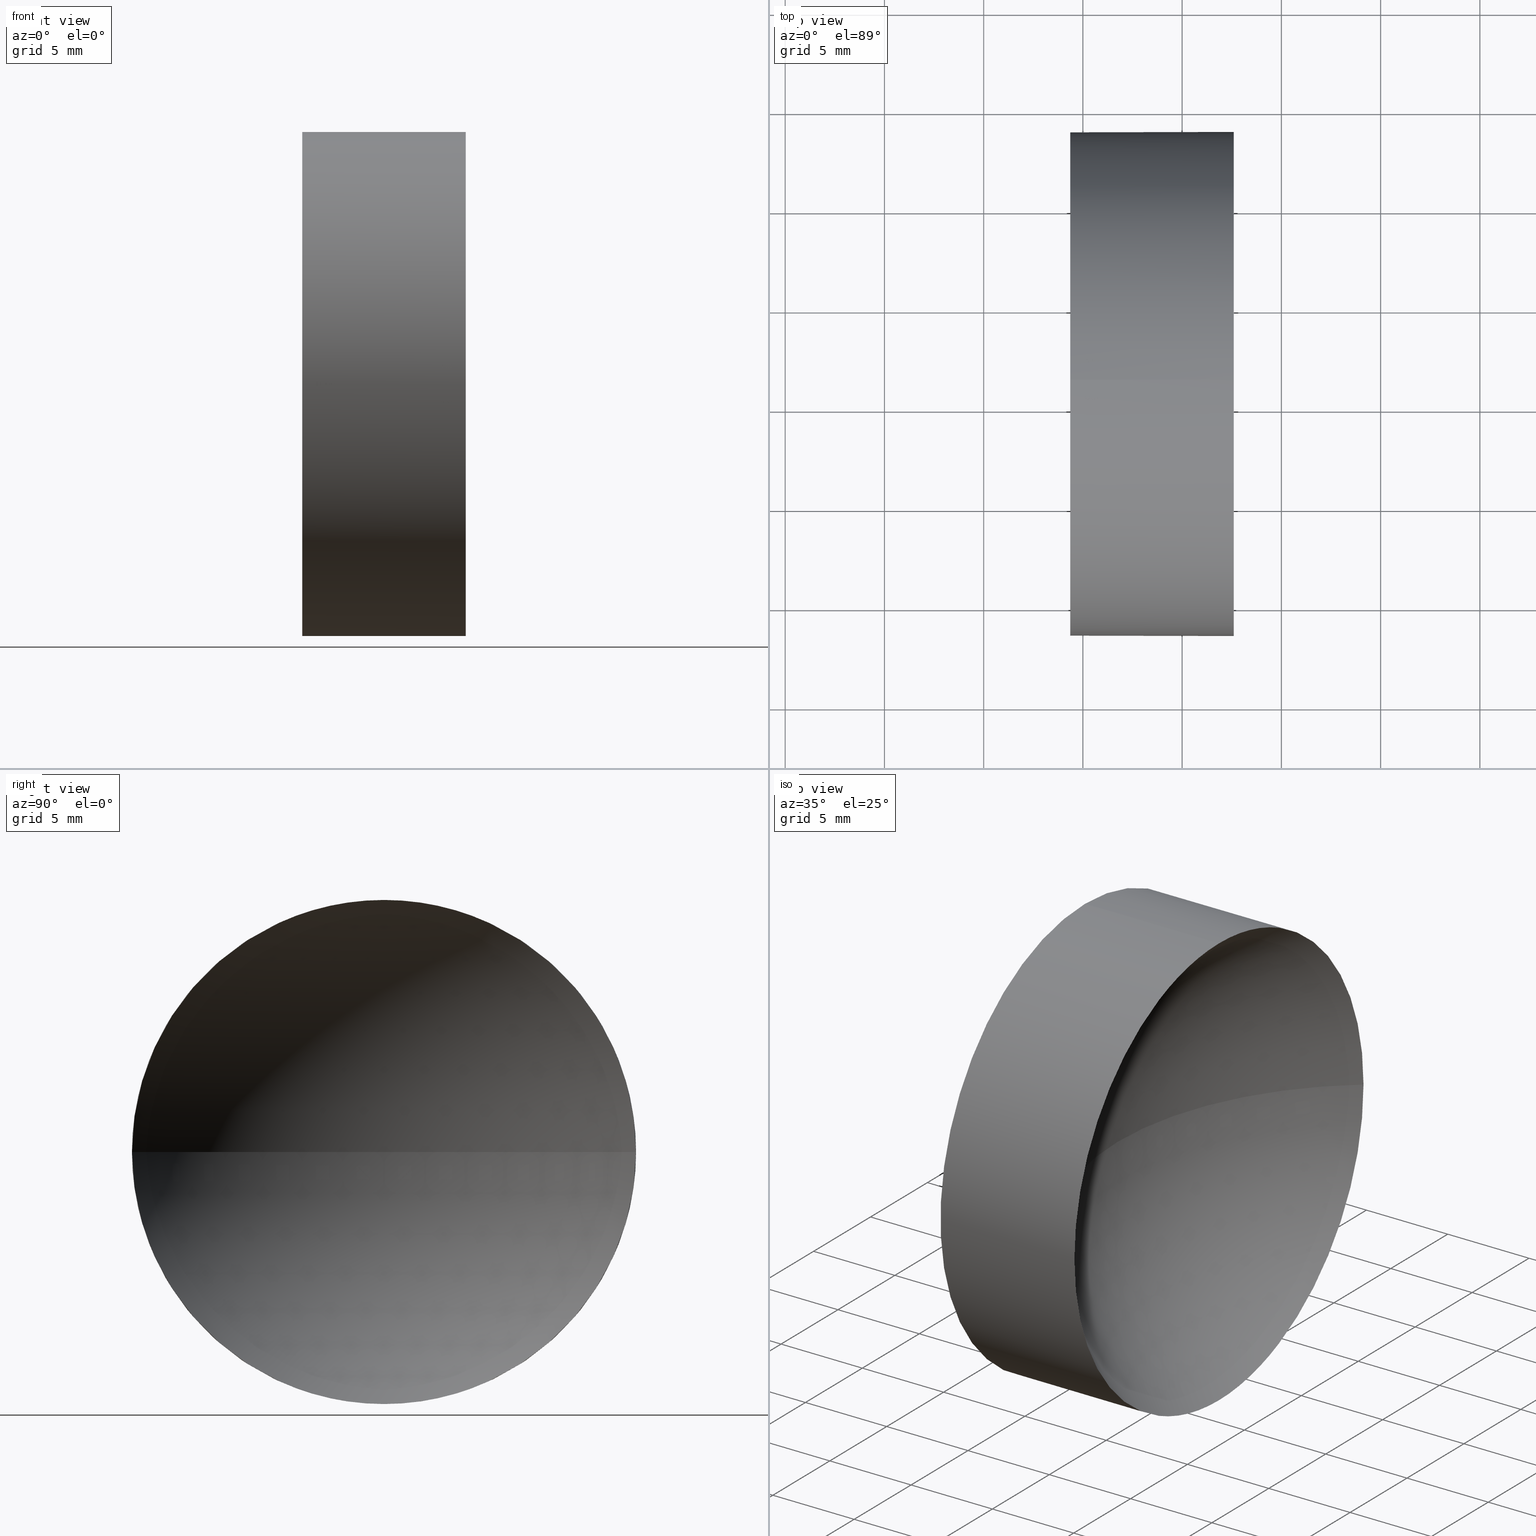
[diagram: canonical four-view strip — front | top / right | iso, engineering-drawing reading convention]
A machine part, canonical four-view strip (front | top / right | iso — engineering-drawing reading convention). The complete STEP part file that produces these views, byte-faithful:
ISO-10303-21;
HEADER;
FILE_DESCRIPTION (( 'STEP AP214' ),
    '1' );
FILE_NAME ('120263.STEP',
    '2019-06-25T03:00:01',
    ( '' ),
    ( '' ),
    'SwSTEP 2.0',
    'SolidWorks 2016',
    '' );
FILE_SCHEMA (( 'AUTOMOTIVE_DESIGN' ));
ENDSEC;

DATA;
#1 = PRODUCT_CONTEXT ( 'NONE', #57, 'mechanical' ) ;
#2 = ORIENTED_EDGE ( 'NONE', *, *, #133, .T. ) ;
#3 = EDGE_CURVE ( 'NONE', #100, #89, #6, .T. ) ;
#4 = EDGE_LOOP ( 'NONE', ( #185, #23, #33, #153 ) ) ;
#5 = FILL_AREA_STYLE_COLOUR ( '', #29 ) ;
#6 = CIRCLE ( 'NONE', #164, 12.70000000000001700 ) ;
#7 = AXIS2_PLACEMENT_3D ( 'NONE', #28, #147, #122 ) ;
#8 = ORIENTED_EDGE ( 'NONE', *, *, #120, .T. ) ;
#9 = CARTESIAN_POINT ( 'NONE',  ( 127.5990375788394700, 71.19398908659370300, -12.70000000000001500 ) ) ;
#10 = AXIS2_PLACEMENT_3D ( 'NONE', #97, #11, #109 ) ;
#11 = DIRECTION ( 'NONE',  ( -1.000000000000000000, -0.0000000000000000000, -0.0000000000000000000 ) ) ;
#12 = DIRECTION ( 'NONE',  ( 0.0000000000000000000, -1.000000000000000000, 0.0000000000000000000 ) ) ;
#13 = PLANE ( 'NONE',  #118 ) ;
#14 = PRESENTATION_STYLE_ASSIGNMENT (( #177 ) ) ;
#15 = ORIENTED_EDGE ( 'NONE', *, *, #133, .F. ) ;
#16 = CARTESIAN_POINT ( 'NONE',  ( 127.5990375788394700, 71.19398908659370300, 0.0000000000000000000 ) ) ;
#17 = AXIS2_PLACEMENT_3D ( 'NONE', #138, #186, #19 ) ;
#18 = CARTESIAN_POINT ( 'NONE',  ( 119.3629307920347200, 71.19398908659370300, 0.0000000000000000000 ) ) ;
#19 = DIRECTION ( 'NONE',  ( 0.0000000000000000000, -1.000000000000000000, -1.224646799147353000E-016 ) ) ;
#20 = ADVANCED_FACE ( 'NONE', ( #41 ), #145, .F. ) ;
#21 = CIRCLE ( 'NONE', #63, 16.05000000000000800 ) ;
#22 = DIRECTION ( 'NONE',  ( -1.000000000000000000, -0.0000000000000000000, -0.0000000000000000000 ) ) ;
#23 = ORIENTED_EDGE ( 'NONE', *, *, #159, .T. ) ;
#24 = DIRECTION ( 'NONE',  ( -1.000000000000000000, -0.0000000000000000000, -0.0000000000000000000 ) ) ;
#25 = CARTESIAN_POINT ( 'NONE',  ( 111.9552297575605700, 71.19398908659370300, 12.70000000000001000 ) ) ;
#26 = AXIS2_PLACEMENT_3D ( 'NONE', #18, #129, #60 ) ;
#27 = CARTESIAN_POINT ( 'NONE',  ( 127.5990375788394700, 71.19398908659370300, 12.70000000000001500 ) ) ;
#28 = CARTESIAN_POINT ( 'NONE',  ( 119.3629307920347200, 71.19398908659370300, 0.0000000000000000000 ) ) ;
#29 = COLOUR_RGB ( '',1.000000000000000000, 1.000000000000000000, 1.000000000000000000 ) ;
#30 = AXIS2_PLACEMENT_3D ( 'NONE', #135, #94, #12 ) ;
#31 = PRODUCT_DEFINITION_CONTEXT ( 'detailed design', #32, 'design' ) ;
#32 = APPLICATION_CONTEXT ( 'automotive_design' ) ;
#33 = ORIENTED_EDGE ( 'NONE', *, *, #182, .F. ) ;
#34 = EDGE_LOOP ( 'NONE', ( #156, #171, #175, #64 ) ) ;
#35 = VERTEX_POINT ( 'NONE', #40 ) ;
#36 = CARTESIAN_POINT ( 'NONE',  ( 121.3629307920347200, 71.19398908659371700, 0.0000000000000000000 ) ) ;
#37 = CARTESIAN_POINT ( 'NONE',  ( 111.9552297575605700, 71.19398908659370300, 0.0000000000000000000 ) ) ;
#38 = FILL_AREA_STYLE_COLOUR ( '', #167 ) ;
#39 = ORIENTED_EDGE ( 'NONE', *, *, #170, .F. ) ;
#40 = CARTESIAN_POINT ( 'NONE',  ( 119.3629307920347200, 71.19398908659370300, -12.70000000000000300 ) ) ;
#41 = FACE_OUTER_BOUND ( 'NONE', #34, .T. ) ;
#42 = AXIS2_PLACEMENT_3D ( 'NONE', #73, #59, #116 ) ;
#43 =( NAMED_UNIT ( * ) SI_UNIT ( $, .STERADIAN. ) SOLID_ANGLE_UNIT ( ) );
#44 = DIRECTION ( 'NONE',  ( 1.000000000000000000, 0.0000000000000000000, 0.0000000000000000000 ) ) ;
#45 = UNCERTAINTY_MEASURE_WITH_UNIT (LENGTH_MEASURE( 1.000000000000000100E-005 ), #81, 'distance_accuracy_value', 'NONE');
#46 =( GEOMETRIC_REPRESENTATION_CONTEXT ( 3 ) GLOBAL_UNCERTAINTY_ASSIGNED_CONTEXT ( ( #45 ) ) GLOBAL_UNIT_ASSIGNED_CONTEXT ( ( #81, #173, #91 ) ) REPRESENTATION_CONTEXT ( 'NONE', 'WORKASPACE' ) );
#47 = PRODUCT_DEFINITION_SHAPE ( 'NONE', 'NONE',  #102 ) ;
#48 = MECHANICAL_DESIGN_GEOMETRIC_PRESENTATION_REPRESENTATION (  '', ( #136 ), #70 ) ;
#49 = ADVANCED_FACE ( 'NONE', ( #76 ), #110, .T. ) ;
#50 = EDGE_CURVE ( 'NONE', #142, #144, #143, .T. ) ;
#51 = CARTESIAN_POINT ( 'NONE',  ( 127.5990375788394700, 83.89398908659373400, 1.555301434917139200E-015 ) ) ;
#52 = FILL_AREA_STYLE ('',( #38 ) ) ;
#53 =( NAMED_UNIT ( * ) PLANE_ANGLE_UNIT ( ) SI_UNIT ( $, .RADIAN. ) );
#54 = DIRECTION ( 'NONE',  ( 0.0000000000000000000, 0.0000000000000000000, -1.000000000000000000 ) ) ;
#55 = CARTESIAN_POINT ( 'NONE',  ( 127.5990375788394700, 71.19398908659370300, 0.0000000000000000000 ) ) ;
#56 = APPLICATION_PROTOCOL_DEFINITION ( 'draft international standard', 'automotive_design', 1998, #57 ) ;
#57 = APPLICATION_CONTEXT ( 'automotive_design' ) ;
#58 = CIRCLE ( 'NONE', #10, 12.70000000000001700 ) ;
#59 = DIRECTION ( 'NONE',  ( 0.0000000000000000000, 0.0000000000000000000, 1.000000000000000000 ) ) ;
#60 = DIRECTION ( 'NONE',  ( 0.0000000000000000000, 0.0000000000000000000, 1.000000000000000000 ) ) ;
#61 = ORIENTED_EDGE ( 'NONE', *, *, #148, .T. ) ;
#62 = ORIENTED_EDGE ( 'NONE', *, *, #126, .T. ) ;
#63 = AXIS2_PLACEMENT_3D ( 'NONE', #107, #54, #68 ) ;
#64 = ORIENTED_EDGE ( 'NONE', *, *, #182, .T. ) ;
#65 = DIRECTION ( 'NONE',  ( -1.000000000000000000, -0.0000000000000000000, -0.0000000000000000000 ) ) ;
#66 = ORIENTED_EDGE ( 'NONE', *, *, #148, .F. ) ;
#67 = AXIS2_PLACEMENT_3D ( 'NONE', #134, #183, #71 ) ;
#68 = DIRECTION ( 'NONE',  ( -1.000000000000000000, 0.0000000000000000000, 0.0000000000000000000 ) ) ;
#69 = DIRECTION ( 'NONE',  ( 0.0000000000000000000, 0.0000000000000000000, 1.000000000000000000 ) ) ;
#70 =( GEOMETRIC_REPRESENTATION_CONTEXT ( 3 ) GLOBAL_UNCERTAINTY_ASSIGNED_CONTEXT ( ( #96 ) ) GLOBAL_UNIT_ASSIGNED_CONTEXT ( ( #85, #53, #43 ) ) REPRESENTATION_CONTEXT ( 'NONE', 'WORKASPACE' ) );
#71 = DIRECTION ( 'NONE',  ( 0.0000000000000000000, -1.000000000000000000, 0.0000000000000000000 ) ) ;
#72 = EDGE_LOOP ( 'NONE', ( #2, #168 ) ) ;
#73 = CARTESIAN_POINT ( 'NONE',  ( 0.0000000000000000000, 0.0000000000000000000, 0.0000000000000000000 ) ) ;
#74 = ORIENTED_EDGE ( 'NONE', *, *, #3, .T. ) ;
#75 = UNCERTAINTY_MEASURE_WITH_UNIT (LENGTH_MEASURE( 1.000000000000000100E-005 ), #184, 'distance_accuracy_value', 'NONE');
#76 = FACE_OUTER_BOUND ( 'NONE', #121, .T. ) ;
#77 = STYLED_ITEM ( 'NONE', ( #158 ), #114 ) ;
#78 = VERTEX_POINT ( 'NONE', #51 ) ;
#79 = SURFACE_STYLE_FILL_AREA ( #178 ) ;
#80 = ADVANCED_FACE ( 'NONE', ( #140 ), #86, .T. ) ;
#81 =( LENGTH_UNIT ( ) NAMED_UNIT ( * ) SI_UNIT ( .MILLI., .METRE. ) );
#82 = DIRECTION ( 'NONE',  ( -1.000000000000000000, -0.0000000000000000000, -0.0000000000000000000 ) ) ;
#83 = VECTOR ( 'NONE', #84, 1000.000000000000000 ) ;
#84 = DIRECTION ( 'NONE',  ( -1.000000000000000000, -0.0000000000000000000, -0.0000000000000000000 ) ) ;
#85 =( LENGTH_UNIT ( ) NAMED_UNIT ( * ) SI_UNIT ( .MILLI., .METRE. ) );
#86 = CYLINDRICAL_SURFACE ( 'NONE', #176, 12.70000000000001000 ) ;
#87 = CIRCLE ( 'NONE', #7, 12.70000000000000300 ) ;
#88 = CIRCLE ( 'NONE', #169, 12.70000000000001700 ) ;
#89 = VERTEX_POINT ( 'NONE', #92 ) ;
#90 = PRESENTATION_LAYER_ASSIGNMENT (  '', '', ( #77 ) ) ;
#91 =( NAMED_UNIT ( * ) SI_UNIT ( $, .STERADIAN. ) SOLID_ANGLE_UNIT ( ) );
#92 = CARTESIAN_POINT ( 'NONE',  ( 127.5990375788394700, 58.49398908659370000, 0.0000000000000000000 ) ) ;
#93 = EDGE_LOOP ( 'NONE', ( #66, #74, #62, #125, #39 ) ) ;
#94 = DIRECTION ( 'NONE',  ( 0.0000000000000000000, 0.0000000000000000000, 1.000000000000000000 ) ) ;
#95 = CARTESIAN_POINT ( 'NONE',  ( 119.3629307920347200, 71.19398908659370300, 12.70000000000000300 ) ) ;
#96 = UNCERTAINTY_MEASURE_WITH_UNIT (LENGTH_MEASURE( 1.000000000000000100E-005 ), #85, 'distance_accuracy_value', 'NONE');
#97 = CARTESIAN_POINT ( 'NONE',  ( 127.5990375788394700, 71.19398908659370300, 0.0000000000000000000 ) ) ;
#98 = ADVANCED_BREP_SHAPE_REPRESENTATION ( '120263', ( #114, #42 ), #46 ) ;
#99 = CIRCLE ( 'NONE', #26, 12.70000000000000300 ) ;
#100 = VERTEX_POINT ( 'NONE', #9 ) ;
#101 = CARTESIAN_POINT ( 'NONE',  ( 119.3629307920347200, 71.19398908659370300, 0.0000000000000000000 ) ) ;
#102 = PRODUCT_DEFINITION ( 'δ֪', '', #128, #31 ) ;
#103 = FACE_OUTER_BOUND ( 'NONE', #4, .T. ) ;
#104 = MECHANICAL_DESIGN_GEOMETRIC_PRESENTATION_REPRESENTATION (  '', ( #77 ), #141 ) ;
#105 = PRODUCT_RELATED_PRODUCT_CATEGORY ( 'part', '', ( #157 ) ) ;
#106 = ADVANCED_FACE ( 'NONE', ( #103 ), #181, .F. ) ;
#107 = CARTESIAN_POINT ( 'NONE',  ( 137.4129307920347300, 71.19398908659371700, 0.0000000000000000000 ) ) ;
#108 = LINE ( 'NONE', #146, #83 ) ;
#109 = DIRECTION ( 'NONE',  ( 0.0000000000000000000, 0.0000000000000000000, 1.000000000000000000 ) ) ;
#110 = CYLINDRICAL_SURFACE ( 'NONE', #174, 12.70000000000001000 ) ;
#111 = CARTESIAN_POINT ( 'NONE',  ( 127.5990375788394700, 71.19398908659370300, 0.0000000000000000000 ) ) ;
#112 = DIRECTION ( 'NONE',  ( 0.0000000000000000000, 0.0000000000000000000, 1.000000000000000000 ) ) ;
#113 = ORIENTED_EDGE ( 'NONE', *, *, #124, .T. ) ;
#114 = MANIFOLD_SOLID_BREP ( '��ת1', #117 ) ;
#115 = VECTOR ( 'NONE', #65, 1000.000000000000000 ) ;
#116 = DIRECTION ( 'NONE',  ( 1.000000000000000000, 0.0000000000000000000, 0.0000000000000000000 ) ) ;
#117 = CLOSED_SHELL ( 'NONE', ( #49, #106, #20, #80, #172 ) ) ;
#118 = AXIS2_PLACEMENT_3D ( 'NONE', #101, #44, #154 ) ;
#119 = FACE_OUTER_BOUND ( 'NONE', #72, .T. ) ;
#120 = EDGE_CURVE ( 'NONE', #142, #78, #131, .T. ) ;
#121 = EDGE_LOOP ( 'NONE', ( #113, #61, #15, #162, #8 ) ) ;
#122 = DIRECTION ( 'NONE',  ( 0.0000000000000000000, 0.0000000000000000000, 1.000000000000000000 ) ) ;
#123 = DIRECTION ( 'NONE',  ( -1.000000000000000000, -0.0000000000000000000, -0.0000000000000000000 ) ) ;
#124 = EDGE_CURVE ( 'NONE', #78, #100, #58, .T. ) ;
#125 = ORIENTED_EDGE ( 'NONE', *, *, #50, .T. ) ;
#126 = EDGE_CURVE ( 'NONE', #89, #142, #88, .T. ) ;
#127 = VERTEX_POINT ( 'NONE', #36 ) ;
#128 = PRODUCT_DEFINITION_FORMATION_WITH_SPECIFIED_SOURCE ( '�κ�', '', #157, .NOT_KNOWN. ) ;
#129 = DIRECTION ( 'NONE',  ( -1.000000000000000000, -0.0000000000000000000, -0.0000000000000000000 ) ) ;
#130 = SHAPE_DEFINITION_REPRESENTATION ( #47, #98 ) ;
#131 = CIRCLE ( 'NONE', #155, 12.70000000000001700 ) ;
#132 = PRESENTATION_LAYER_ASSIGNMENT (  '', '', ( #136 ) ) ;
#133 = EDGE_CURVE ( 'NONE', #144, #35, #87, .T. ) ;
#134 = CARTESIAN_POINT ( 'NONE',  ( 137.4129307920347300, 71.19398908659371700, 0.0000000000000000000 ) ) ;
#135 = CARTESIAN_POINT ( 'NONE',  ( 137.4129307920347300, 71.19398908659371700, 0.0000000000000000000 ) ) ;
#136 = STYLED_ITEM ( 'NONE', ( #14 ), #98 ) ;
#137 =( NAMED_UNIT ( * ) PLANE_ANGLE_UNIT ( ) SI_UNIT ( $, .RADIAN. ) );
#138 = CARTESIAN_POINT ( 'NONE',  ( 137.4129307920347300, 71.19398908659371700, 0.0000000000000000000 ) ) ;
#139 = CARTESIAN_POINT ( 'NONE',  ( 111.9552297575605700, 71.19398908659370300, 0.0000000000000000000 ) ) ;
#140 = FACE_OUTER_BOUND ( 'NONE', #93, .T. ) ;
#141 =( GEOMETRIC_REPRESENTATION_CONTEXT ( 3 ) GLOBAL_UNCERTAINTY_ASSIGNED_CONTEXT ( ( #75 ) ) GLOBAL_UNIT_ASSIGNED_CONTEXT ( ( #184, #137, #152 ) ) REPRESENTATION_CONTEXT ( 'NONE', 'WORKASPACE' ) );
#142 = VERTEX_POINT ( 'NONE', #27 ) ;
#143 = LINE ( 'NONE', #25, #115 ) ;
#144 = VERTEX_POINT ( 'NONE', #95 ) ;
#145 = SPHERICAL_SURFACE ( 'NONE', #30, 16.05000000000000400 ) ;
#146 = CARTESIAN_POINT ( 'NONE',  ( 111.9552297575605700, 71.19398908659370300, -12.70000000000001000 ) ) ;
#147 = DIRECTION ( 'NONE',  ( -1.000000000000000000, -0.0000000000000000000, -0.0000000000000000000 ) ) ;
#148 = EDGE_CURVE ( 'NONE', #100, #35, #108, .T. ) ;
#149 = SURFACE_STYLE_USAGE ( .BOTH. , #160 ) ;
#150 = SURFACE_STYLE_FILL_AREA ( #52 ) ;
#151 = DIRECTION ( 'NONE',  ( 0.0000000000000000000, 0.0000000000000000000, 1.000000000000000000 ) ) ;
#152 =( NAMED_UNIT ( * ) SI_UNIT ( $, .STERADIAN. ) SOLID_ANGLE_UNIT ( ) );
#153 = ORIENTED_EDGE ( 'NONE', *, *, #3, .F. ) ;
#154 = DIRECTION ( 'NONE',  ( 0.0000000000000000000, 0.0000000000000000000, -1.000000000000000000 ) ) ;
#155 = AXIS2_PLACEMENT_3D ( 'NONE', #55, #82, #165 ) ;
#156 = ORIENTED_EDGE ( 'NONE', *, *, #159, .F. ) ;
#157 = PRODUCT ( '120263', '120263', '', ( #1 ) ) ;
#158 = PRESENTATION_STYLE_ASSIGNMENT (( #149 ) ) ;
#159 = EDGE_CURVE ( 'NONE', #78, #127, #180, .T. ) ;
#160 = SURFACE_SIDE_STYLE ('',( #150 ) ) ;
#161 = DIRECTION ( 'NONE',  ( 0.0000000000000000000, 0.0000000000000000000, 1.000000000000000000 ) ) ;
#162 = ORIENTED_EDGE ( 'NONE', *, *, #50, .F. ) ;
#163 = DIRECTION ( 'NONE',  ( -1.000000000000000000, -0.0000000000000000000, -0.0000000000000000000 ) ) ;
#164 = AXIS2_PLACEMENT_3D ( 'NONE', #16, #24, #161 ) ;
#165 = DIRECTION ( 'NONE',  ( 0.0000000000000000000, 0.0000000000000000000, 1.000000000000000000 ) ) ;
#166 = APPLICATION_PROTOCOL_DEFINITION ( 'draft international standard', 'automotive_design', 1998, #32 ) ;
#167 = COLOUR_RGB ( '',1.000000000000000000, 1.000000000000000000, 1.000000000000000000 ) ;
#168 = ORIENTED_EDGE ( 'NONE', *, *, #170, .T. ) ;
#169 = AXIS2_PLACEMENT_3D ( 'NONE', #111, #123, #69 ) ;
#170 = EDGE_CURVE ( 'NONE', #35, #144, #99, .T. ) ;
#171 = ORIENTED_EDGE ( 'NONE', *, *, #120, .F. ) ;
#172 = ADVANCED_FACE ( 'NONE', ( #119 ), #13, .F. ) ;
#173 =( NAMED_UNIT ( * ) PLANE_ANGLE_UNIT ( ) SI_UNIT ( $, .RADIAN. ) );
#174 = AXIS2_PLACEMENT_3D ( 'NONE', #139, #163, #151 ) ;
#175 = ORIENTED_EDGE ( 'NONE', *, *, #126, .F. ) ;
#176 = AXIS2_PLACEMENT_3D ( 'NONE', #37, #22, #112 ) ;
#177 = SURFACE_STYLE_USAGE ( .BOTH. , #179 ) ;
#178 = FILL_AREA_STYLE ('',( #5 ) ) ;
#179 = SURFACE_SIDE_STYLE ('',( #79 ) ) ;
#180 = CIRCLE ( 'NONE', #17, 16.05000000000000800 ) ;
#181 = SPHERICAL_SURFACE ( 'NONE', #67, 16.05000000000000400 ) ;
#182 = EDGE_CURVE ( 'NONE', #89, #127, #21, .T. ) ;
#183 = DIRECTION ( 'NONE',  ( 0.0000000000000000000, 0.0000000000000000000, 1.000000000000000000 ) ) ;
#184 =( LENGTH_UNIT ( ) NAMED_UNIT ( * ) SI_UNIT ( .MILLI., .METRE. ) );
#185 = ORIENTED_EDGE ( 'NONE', *, *, #124, .F. ) ;
#186 = DIRECTION ( 'NONE',  ( 0.0000000000000000000, -1.224646799147353200E-016, 1.000000000000000000 ) ) ;
ENDSEC;
END-ISO-10303-21;
